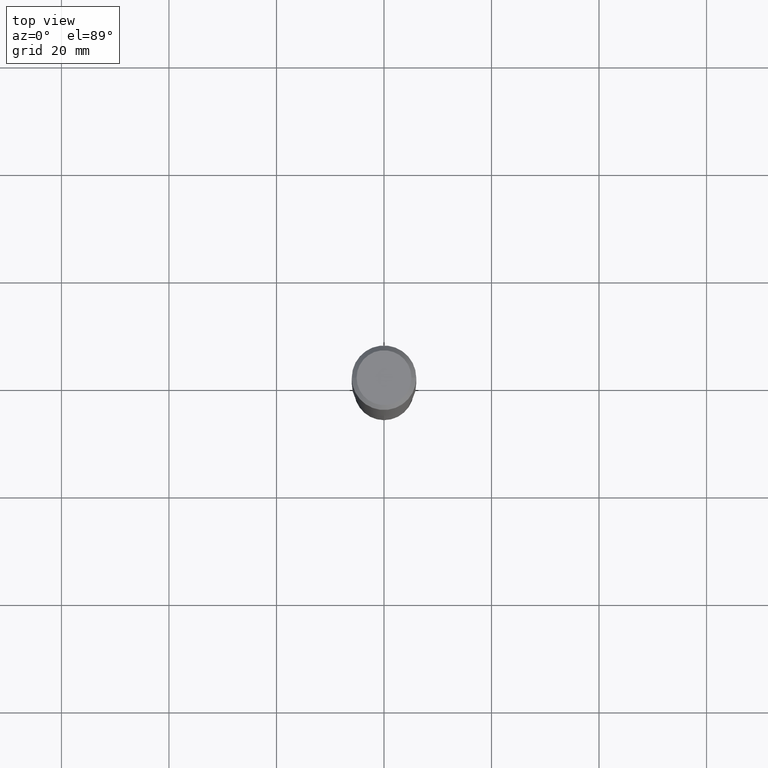
[diagram: clean part render]
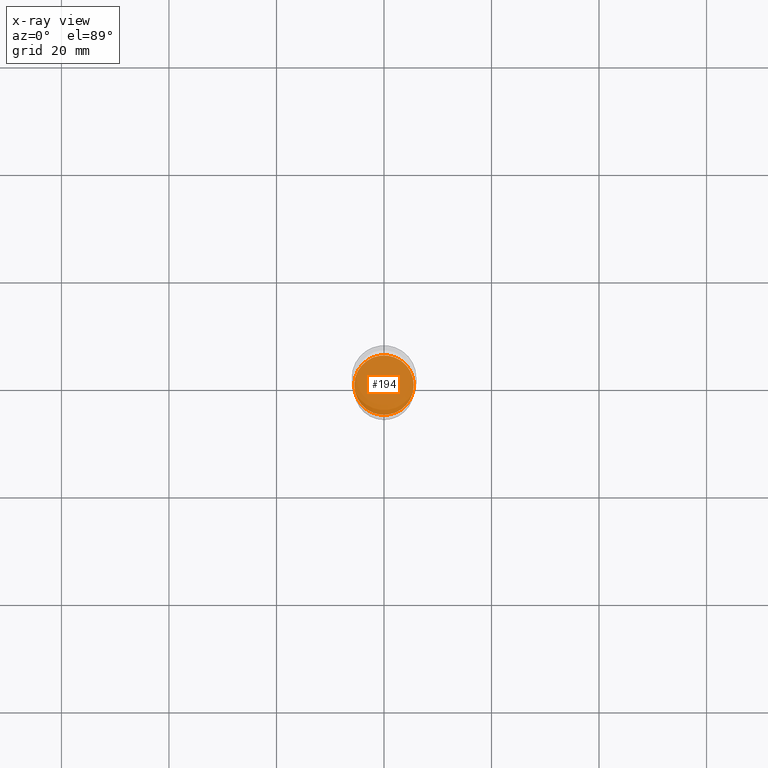
[diagram: x-ray — body ghosted, one internal face saturated and labeled with its STEP entity id]
A machine part, top view, then the same camera in x-ray: the body is ghosted and one INTERNAL B-rep face — a face not visible from any outside direction — is saturated and labeled: STEP entity #194.
In plain terms, the highlighted planar face has unit normal (-0, 0, 1).
Its self-contained STEP definition (entity closure, byte-faithful):
#17 = DIRECTION ( 'NONE',  ( 1.000000000000000000, -6.982962677686265922E-15, 4.876176775795935793E-29 ) ) ;
#28 = ORIENTED_EDGE ( 'NONE', *, *, #203, .F. ) ;
#53 = DIRECTION ( 'NONE',  ( -2.445468806185136597E-29, 3.491481338843145583E-15, 1.000000000000000000 ) ) ;
#66 = AXIS2_PLACEMENT_3D ( 'NONE', #211, #162, #17 ) ;
#86 = CARTESIAN_POINT ( 'NONE',  ( 7.798600022924401307E-29, -1.113433398957079310E-14, -3.189000000000000501 ) ) ;
#94 = ORIENTED_EDGE ( 'NONE', *, *, #373, .F. ) ;
#127 = CIRCLE ( 'NONE', #394, 0.2179999999999999993 ) ;
#145 = CARTESIAN_POINT ( 'NONE',  ( 7.798600022924401307E-29, -1.113433398957079310E-14, -3.189000000000000501 ) ) ;
#158 = CIRCLE ( 'NONE', #199, 0.2179999999999999993 ) ;
#162 = DIRECTION ( 'NONE',  ( -2.438088387897960049E-29, 3.491481338843145188E-15, 1.000000000000000000 ) ) ;
#184 = VERTEX_POINT ( 'NONE', #232 ) ;
#194 = ADVANCED_FACE ( 'NONE', ( #228 ), #419, .F. ) ;
#199 = AXIS2_PLACEMENT_3D ( 'NONE', #145, #414, #452 ) ;
#203 = EDGE_CURVE ( 'NONE', #441, #184, #158, .T. ) ;
#211 = CARTESIAN_POINT ( 'NONE',  ( 7.798600022924401307E-29, -1.113433398957079310E-14, -3.189000000000000501 ) ) ;
#228 = FACE_OUTER_BOUND ( 'NONE', #270, .T. ) ;
#232 = CARTESIAN_POINT ( 'NONE',  ( 0.2179999999999999993, -1.265661985330639943E-14, -3.189000000000000501 ) ) ;
#270 = EDGE_LOOP ( 'NONE', ( #94, #28 ) ) ;
#373 = EDGE_CURVE ( 'NONE', #184, #441, #127, .T. ) ;
#394 = AXIS2_PLACEMENT_3D ( 'NONE', #86, #53, #406 ) ;
#406 = DIRECTION ( 'NONE',  ( 1.000000000000000000, -6.982962677686270655E-15, 0.000000000000000000 ) ) ;
#414 = DIRECTION ( 'NONE',  ( -2.445468806185136597E-29, 3.491481338843145583E-15, 1.000000000000000000 ) ) ;
#419 = PLANE ( 'NONE',  #66 ) ;
#426 = CARTESIAN_POINT ( 'NONE',  ( -0.2179999999999999993, -9.582701598439664486E-15, -3.189000000000000501 ) ) ;
#441 = VERTEX_POINT ( 'NONE', #426 ) ;
#452 = DIRECTION ( 'NONE',  ( 1.000000000000000000, -6.982962677686270655E-15, 0.000000000000000000 ) ) ;